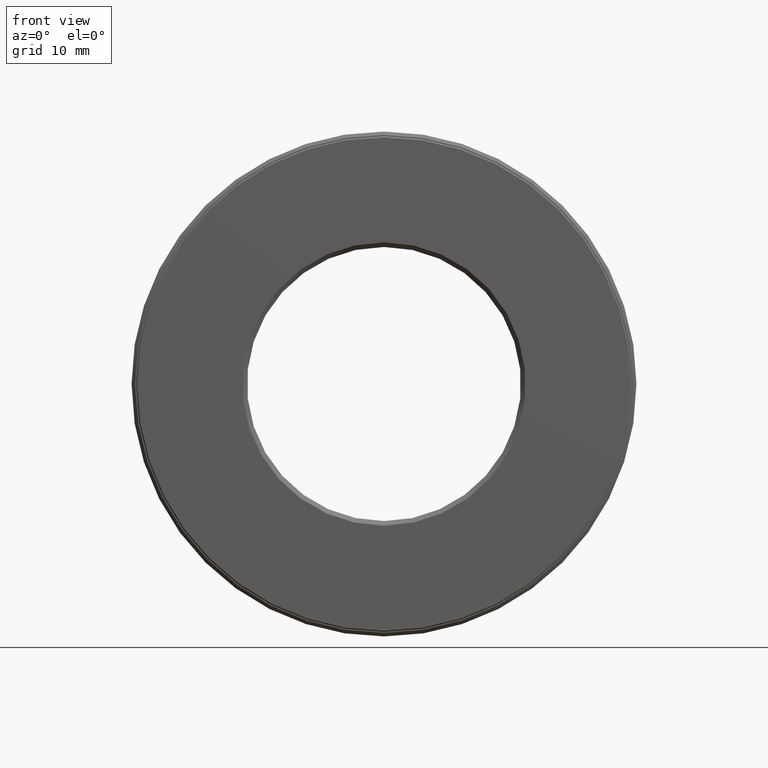
[diagram: clean part render]
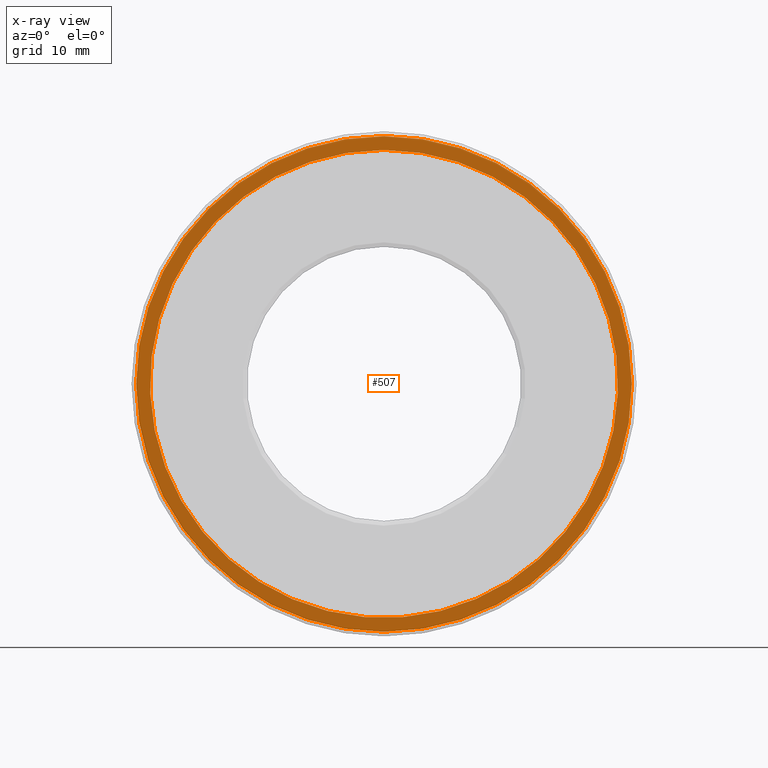
[diagram: x-ray — body ghosted, one internal face saturated and labeled with its STEP entity id]
A machine part, front view, then the same camera in x-ray: the body is ghosted and one INTERNAL B-rep face — a face not visible from any outside direction — is saturated and labeled: STEP entity #507.
In plain terms, the highlighted planar face has unit normal (-0, 1, 0).
Its self-contained STEP definition (entity closure, byte-faithful):
#27 = DIRECTION ( 'NONE',  ( 0.0000000000000000000, 0.0000000000000000000, 1.000000000000000000 ) ) ;
#58 = CIRCLE ( 'NONE', #553, 1.013750000000000200 ) ;
#64 = AXIS2_PLACEMENT_3D ( 'NONE', #399, #250, #496 ) ;
#143 = AXIS2_PLACEMENT_3D ( 'NONE', #459, #173, #27 ) ;
#160 = FACE_OUTER_BOUND ( 'NONE', #485, .T. ) ;
#162 = CIRCLE ( 'NONE', #64, 1.073750000000000000 ) ;
#173 = DIRECTION ( 'NONE',  ( -0.0000000000000000000, 1.000000000000000000, 0.0000000000000000000 ) ) ;
#185 = EDGE_LOOP ( 'NONE', ( #304 ) ) ;
#187 = CARTESIAN_POINT ( 'NONE',  ( 0.0000000000000000000, 0.6524999999999997500, 1.073750000000000000 ) ) ;
#200 = FACE_BOUND ( 'NONE', #185, .T. ) ;
#250 = DIRECTION ( 'NONE',  ( -0.0000000000000000000, 1.000000000000000000, -0.0000000000000000000 ) ) ;
#262 = VERTEX_POINT ( 'NONE', #482 ) ;
#277 = EDGE_CURVE ( 'NONE', #504, #504, #162, .T. ) ;
#304 = ORIENTED_EDGE ( 'NONE', *, *, #373, .T. ) ;
#318 = DIRECTION ( 'NONE',  ( 0.0000000000000000000, 0.0000000000000000000, 1.000000000000000000 ) ) ;
#373 = EDGE_CURVE ( 'NONE', #262, #262, #58, .T. ) ;
#399 = CARTESIAN_POINT ( 'NONE',  ( 0.0000000000000000000, 0.6524999999999997500, 0.0000000000000000000 ) ) ;
#418 = PLANE ( 'NONE',  #143 ) ;
#459 = CARTESIAN_POINT ( 'NONE',  ( 0.0000000000000000000, 0.6524999999999997500, 0.0000000000000000000 ) ) ;
#482 = CARTESIAN_POINT ( 'NONE',  ( 0.0000000000000000000, 0.6524999999999997500, 1.013750000000000200 ) ) ;
#485 = EDGE_LOOP ( 'NONE', ( #503 ) ) ;
#496 = DIRECTION ( 'NONE',  ( 0.0000000000000000000, 0.0000000000000000000, 1.000000000000000000 ) ) ;
#503 = ORIENTED_EDGE ( 'NONE', *, *, #277, .F. ) ;
#504 = VERTEX_POINT ( 'NONE', #187 ) ;
#507 = ADVANCED_FACE ( 'NONE', ( #160, #200 ), #418, .F. ) ;
#510 = DIRECTION ( 'NONE',  ( -0.0000000000000000000, 1.000000000000000000, -0.0000000000000000000 ) ) ;
#553 = AXIS2_PLACEMENT_3D ( 'NONE', #579, #510, #318 ) ;
#579 = CARTESIAN_POINT ( 'NONE',  ( 0.0000000000000000000, 0.6524999999999997500, 0.0000000000000000000 ) ) ;